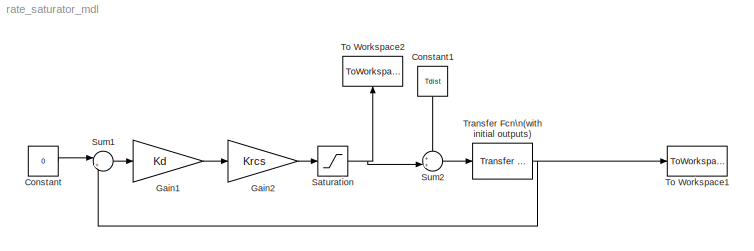
MODEL rate_saturator_mdl
KIND model
CONFIG AbsTol = auto
CONFIG FixedStep = dt
CONFIG MaxStep = auto
CONFIG MinStep = auto
CONFIG RelTol = 1e-3
CONFIG Solver = ode4
CONFIG SolverMode = SingleTasking
CONFIG StartTime = 0.0
CONFIG StopTime = tdur
BLOCK [Constant] Constant
  Value = 0
BLOCK [Constant] Constant1
  Value = Tdist
BLOCK [Gain] Gain1
  Gain = Kd
BLOCK [Gain] Gain2
  Gain = Krcs
BLOCK [Saturate] Saturation
  LowerLimit = -Trcs_max
  SampleTime = dt
  UpperLimit = Trcs_max
BLOCK [Sum] Sum1
  IconShape = round
  InputSameDT = off
  Inputs = |+-
  OutDataTypeMode = Inherit via internal rule
  Ports = [2, 1]
BLOCK [Sum] Sum2
  IconShape = round
  InputSameDT = off
  Inputs = ++|
  OutDataTypeMode = Inherit via internal rule
  Ports = [2, 1]
BLOCK [ToWorkspace] To Workspace1
  MaxDataPoints = inf
  SampleTime = dt
  SaveFormat = Array
  VariableName = w2
BLOCK [ToWorkspace] To Workspace2
  MaxDataPoints = inf
  SampleTime = dt
  SaveFormat = Array
  VariableName = Trcs2
BLOCK [Reference] Transfer Fcn\n(with initial outputs)  REF=simulink_extras/Additional\nLinear/Transfer Fcn\n(with initial outputs)
  D = [I 0]
  N = [1]
  Ports = [1, 1]
  SourceBlock = simulink_extras/Additional\nLinear/Transfer Fcn\n(with initial outputs)
  SourceType = Transfer Function with Initial Outputs
  U0 = 0
  Y0 = w0
LINE Constant1:1 -> Sum2:1
LINE Constant:1 -> Sum1:1
LINE Gain1:1 -> Gain2:1
LINE Gain2:1 -> Saturation:1
NET Saturation:1 -> Sum2:2, To Workspace2:1
LINE Sum1:1 -> Gain1:1
LINE Sum2:1 -> Transfer Fcn\n(with initial outputs):1
NET Transfer Fcn\n(with initial outputs):1 -> Sum1:2, To Workspace1:1
note: NET lines group one-source signal fan-out (src -> all destinations, sorted); 1:1 wires keep LINE
